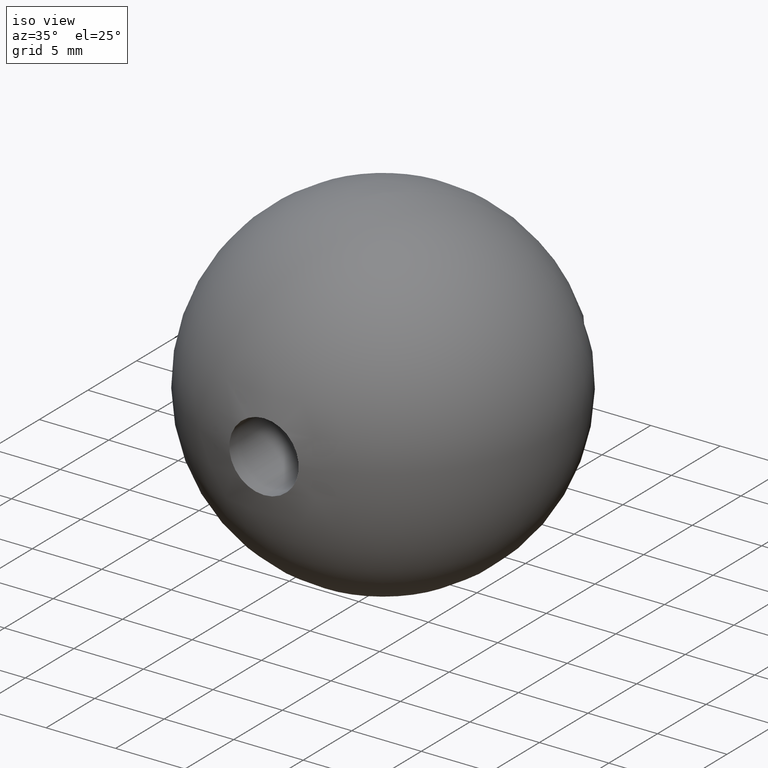
[diagram: clean part render]
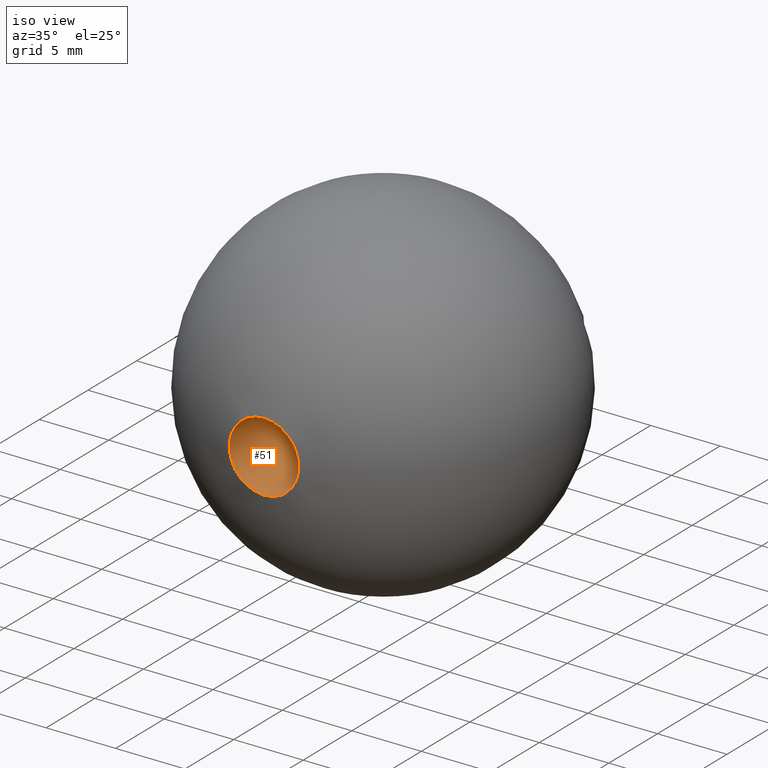
[diagram: same view with one face highlighted and labeled with its STEP entity id]
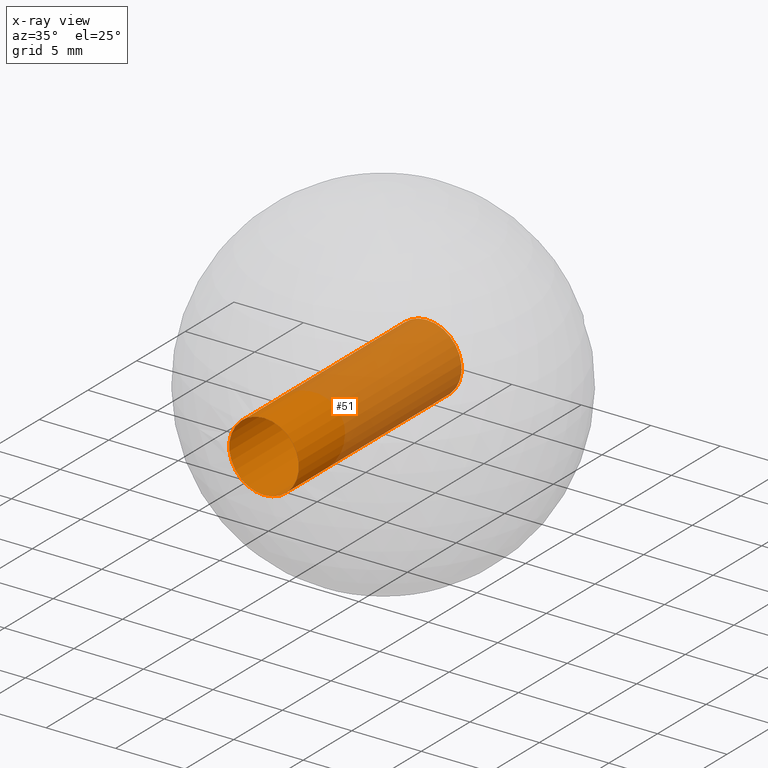
[diagram: x-ray of the same camera — body ghosted, the highlighted face saturated]
A machine part, iso view. The second image highlights one B-rep face of the part: STEP entity #51.
The next image is the same camera in x-ray: the body ghosted, the highlighted face saturated — about 57% of this face is hidden behind the body in this view.
In plain terms, the highlighted cylindrical surface (bore or boss wall) has radius 2.5 mm, axis along (-0, -1, -0).
Its self-contained STEP definition (entity closure, byte-faithful):
#4 = AXIS2_PLACEMENT_3D ( 'NONE', #98, #31, #42 ) ;
#6 = CARTESIAN_POINT ( 'NONE',  ( 0.000000000000000000, 0.2525512860841062079, 0.000000000000000000 ) ) ;
#7 = CARTESIAN_POINT ( 'NONE',  ( 0.000000000000000000, 0.000000000000000000, 0.000000000000000000 ) ) ;
#8 = DIRECTION ( 'NONE',  ( 0.000000000000000000, 0.000000000000000000, -1.000000000000000000 ) ) ;
#18 = DIRECTION ( 'NONE',  ( -0.000000000000000000, -1.000000000000000000, -0.000000000000000000 ) ) ;
#21 = ORIENTED_EDGE ( 'NONE', *, *, #125, .F. ) ;
#26 = VERTEX_POINT ( 'NONE', #34 ) ;
#28 = CARTESIAN_POINT ( 'NONE',  ( 0.000000000000000000, 0.2525512860841062079, 2.499999999999988454 ) ) ;
#31 = DIRECTION ( 'NONE',  ( -0.000000000000000000, -1.000000000000000000, -0.000000000000000000 ) ) ;
#34 = CARTESIAN_POINT ( 'NONE',  ( 0.000000000000000000, 17.00000000000000000, -2.499999999999986677 ) ) ;
#42 = DIRECTION ( 'NONE',  ( 0.000000000000000000, 0.000000000000000000, -1.000000000000000000 ) ) ;
#49 = AXIS2_PLACEMENT_3D ( 'NONE', #7, #18, #8 ) ;
#51 = ADVANCED_FACE ( 'NONE', ( #92, #89 ), #128, .F. ) ;
#63 = DIRECTION ( 'NONE',  ( -0.000000000000000000, -1.000000000000000000, -0.000000000000000000 ) ) ;
#66 = CIRCLE ( 'NONE', #81, 2.499999999999988454 ) ;
#73 = CIRCLE ( 'NONE', #4, 2.499999999999986677 ) ;
#75 = ORIENTED_EDGE ( 'NONE', *, *, #134, .T. ) ;
#79 = DIRECTION ( 'NONE',  ( 0.000000000000000000, 0.000000000000000000, 1.000000000000000000 ) ) ;
#80 = EDGE_LOOP ( 'NONE', ( #75 ) ) ;
#81 = AXIS2_PLACEMENT_3D ( 'NONE', #6, #63, #79 ) ;
#89 = FACE_OUTER_BOUND ( 'NONE', #119, .T. ) ;
#92 = FACE_OUTER_BOUND ( 'NONE', #80, .T. ) ;
#98 = CARTESIAN_POINT ( 'NONE',  ( 0.000000000000000000, 17.00000000000000000, 0.000000000000000000 ) ) ;
#119 = EDGE_LOOP ( 'NONE', ( #21 ) ) ;
#120 = VERTEX_POINT ( 'NONE', #28 ) ;
#125 = EDGE_CURVE ( 'NONE', #26, #26, #73, .T. ) ;
#128 = CYLINDRICAL_SURFACE ( 'NONE', #49, 2.499999999999988454 ) ;
#134 = EDGE_CURVE ( 'NONE', #120, #120, #66, .T. ) ;